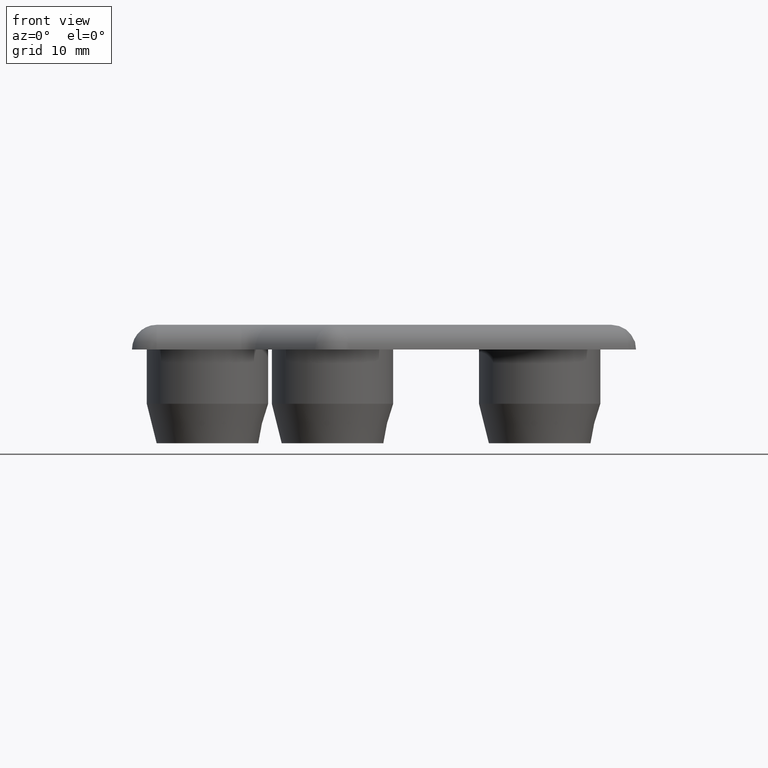
[diagram: clean part render]
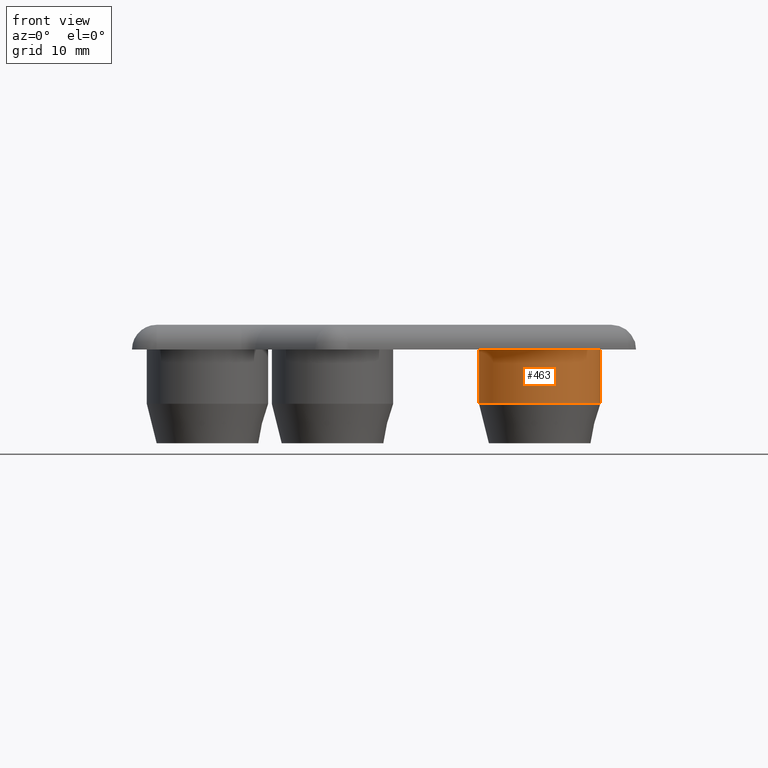
[diagram: same view with one face highlighted and labeled with its STEP entity id]
A machine part, front view. The second image highlights one B-rep face of the part: STEP entity #463.
In plain terms, the highlighted cylindrical surface (bore or boss wall) has radius 6.15 mm, axis along (0, 0, -1).
Its self-contained STEP definition (entity closure, byte-faithful):
#42=CYLINDRICAL_SURFACE('',#531,6.15);
#63=FACE_OUTER_BOUND('',#100,.T.);
#100=EDGE_LOOP('',(#355,#356,#357,#358));
#136=LINE('',#803,#160);
#160=VECTOR('',#640,6.15);
#189=CIRCLE('',#529,6.15);
#191=CIRCLE('',#532,6.15);
#229=VERTEX_POINT('',#796);
#231=VERTEX_POINT('',#802);
#275=EDGE_CURVE('',#229,#229,#189,.T.);
#278=EDGE_CURVE('',#229,#231,#136,.T.);
#279=EDGE_CURVE('',#231,#231,#191,.T.);
#355=ORIENTED_EDGE('',*,*,#275,.F.);
#356=ORIENTED_EDGE('',*,*,#278,.T.);
#357=ORIENTED_EDGE('',*,*,#279,.F.);
#358=ORIENTED_EDGE('',*,*,#278,.F.);
#463=ADVANCED_FACE('',(#63),#42,.T.);
#529=AXIS2_PLACEMENT_3D('',#797,#633,#634);
#531=AXIS2_PLACEMENT_3D('',#801,#638,#639);
#532=AXIS2_PLACEMENT_3D('',#804,#641,#642);
#633=DIRECTION('center_axis',(0.,0.,-1.));
#634=DIRECTION('ref_axis',(1.,0.,0.));
#638=DIRECTION('center_axis',(0.,0.,-1.));
#639=DIRECTION('ref_axis',(1.,0.,0.));
#640=DIRECTION('',(0.,0.,1.));
#641=DIRECTION('center_axis',(0.,0.,1.));
#642=DIRECTION('ref_axis',(1.,0.,0.));
#796=CARTESIAN_POINT('',(14.8218527902861,3.00487995849924,-5.5));
#797=CARTESIAN_POINT('Origin',(20.9718527902861,3.00487995849924,-5.5));
#801=CARTESIAN_POINT('Origin',(20.9718527902861,3.00487995849924,0.));
#802=CARTESIAN_POINT('',(14.8218527902861,3.00487995849924,0.));
#803=CARTESIAN_POINT('',(14.8218527902861,3.00487995849924,0.));
#804=CARTESIAN_POINT('Origin',(20.9718527902861,3.00487995849924,0.));